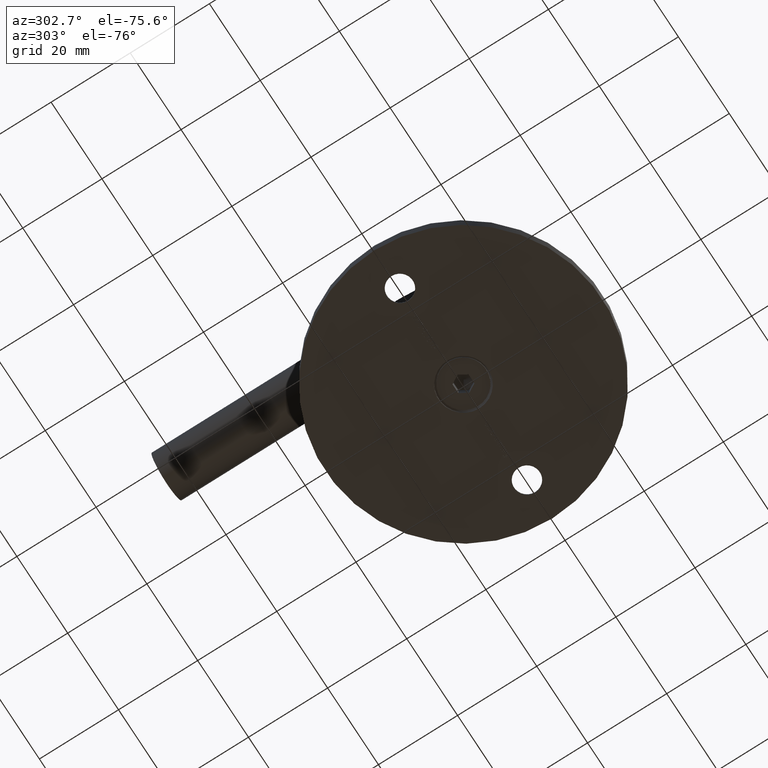
[diagram: clean part render]
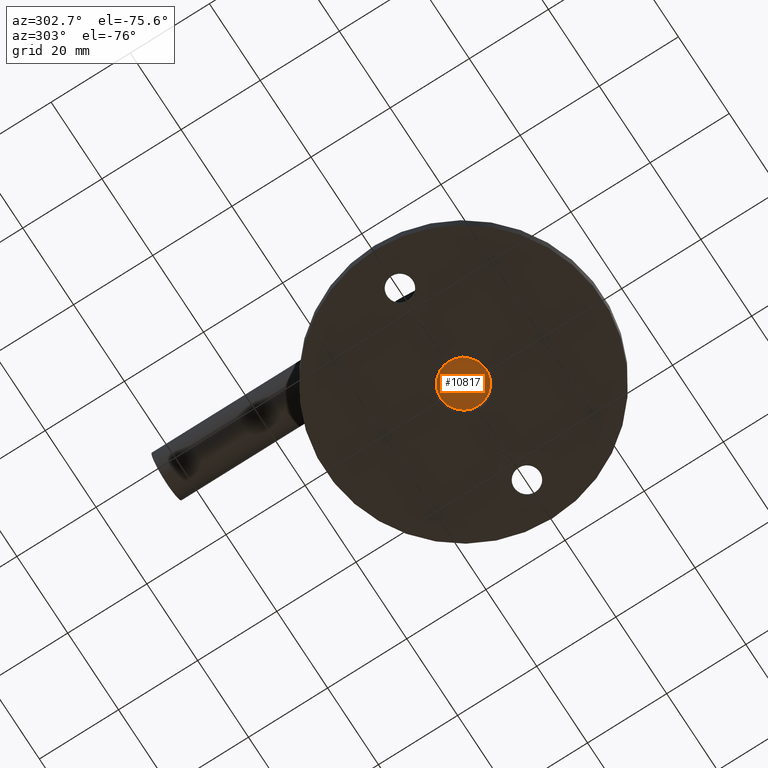
[diagram: same view with one face highlighted and labeled with its STEP entity id]
A machine part, auxiliary view. The second image highlights one B-rep face of the part: STEP entity #10817.
In plain terms, the highlighted planar face has unit normal (-0, 0, -1).
Its self-contained STEP definition (entity closure, byte-faithful):
#138 = ORIENTED_EDGE ( 'NONE', *, *, #9535, .T. ) ;
#214 = FACE_BOUND ( 'NONE', #10493, .T. ) ;
#323 = ORIENTED_EDGE ( 'NONE', *, *, #1240, .T. ) ;
#454 = VECTOR ( 'NONE', #9662, 1000.000000000000000 ) ;
#849 = VECTOR ( 'NONE', #8512, 1000.000000000000114 ) ;
#1240 = EDGE_CURVE ( 'NONE', #8772, #3171, #7513, .T. ) ;
#2100 = VERTEX_POINT ( 'NONE', #12720 ) ;
#2253 = DIRECTION ( 'NONE',  ( 0.000000000000000000, 1.000000000000000000, 0.000000000000000000 ) ) ;
#2633 = CARTESIAN_POINT ( 'NONE',  ( 0.000000000000000000, 7.084581733067438024E-16, -5.785000000000000142 ) ) ;
#2962 = CARTESIAN_POINT ( 'NONE',  ( 0.000000000000000000, 1.160474041071148932, -2.009999999999999787 ) ) ;
#3171 = VERTEX_POINT ( 'NONE', #9110 ) ;
#3634 = ORIENTED_EDGE ( 'NONE', *, *, #8213, .T. ) ;
#4236 = LINE ( 'NONE', #16741, #454 ) ;
#4256 = CARTESIAN_POINT ( 'NONE',  ( 0.000000000000000000, 0.000000000000000000, 0.000000000000000000 ) ) ;
#5115 = CARTESIAN_POINT ( 'NONE',  ( 0.000000000000000000, 1.160474041071148710, 2.009999999999999787 ) ) ;
#5296 = EDGE_CURVE ( 'NONE', #7621, #8772, #4236, .T. ) ;
#5564 = CARTESIAN_POINT ( 'NONE',  ( 0.000000000000000000, 1.160474041071148932, -2.009999999999999787 ) ) ;
#6294 = EDGE_LOOP ( 'NONE', ( #14949, #8555 ) ) ;
#6339 = CARTESIAN_POINT ( 'NONE',  ( 0.000000000000000000, -1.160474041071145601, -2.010000000000000231 ) ) ;
#7416 = CARTESIAN_POINT ( 'NONE',  ( 0.000000000000000000, 1.160474041071148710, 2.009999999999999787 ) ) ;
#7417 = ORIENTED_EDGE ( 'NONE', *, *, #13133, .T. ) ;
#7513 = LINE ( 'NONE', #7416, #12866 ) ;
#7621 = VERTEX_POINT ( 'NONE', #13964 ) ;
#8213 = EDGE_CURVE ( 'NONE', #3171, #2100, #16143, .T. ) ;
#8318 = CARTESIAN_POINT ( 'NONE',  ( 0.000000000000000000, 0.000000000000000000, 5.785000000000000142 ) ) ;
#8355 = EDGE_CURVE ( 'NONE', #2100, #10495, #17453, .T. ) ;
#8512 = DIRECTION ( 'NONE',  ( 0.000000000000000000, 0.4999999999999993339, -0.8660254037844389297 ) ) ;
#8555 = ORIENTED_EDGE ( 'NONE', *, *, #15259, .T. ) ;
#8772 = VERTEX_POINT ( 'NONE', #5115 ) ;
#9110 = CARTESIAN_POINT ( 'NONE',  ( 0.000000000000000000, -1.160474041071146489, 2.009999999999999787 ) ) ;
#9385 = DIRECTION ( 'NONE',  ( 0.000000000000000000, -0.4999999999999995004, -0.8660254037844389297 ) ) ;
#9465 = DIRECTION ( 'NONE',  ( -1.000000000000000000, 0.000000000000000000, -0.000000000000000000 ) ) ;
#9471 = LINE ( 'NONE', #6339, #10802 ) ;
#9535 = EDGE_CURVE ( 'NONE', #14131, #7621, #10882, .T. ) ;
#9662 = DIRECTION ( 'NONE',  ( 0.000000000000000000, -0.4999999999999999445, 0.8660254037844387076 ) ) ;
#9830 = CARTESIAN_POINT ( 'NONE',  ( 0.000000000000000000, -2.320948082142292535, 0.000000000000000000 ) ) ;
#9962 = CARTESIAN_POINT ( 'NONE',  ( 0.000000000000000000, 0.000000000000000000, 0.000000000000000000 ) ) ;
#10459 = AXIS2_PLACEMENT_3D ( 'NONE', #16608, #9465, #12331 ) ;
#10493 = EDGE_LOOP ( 'NONE', ( #3634, #17652, #7417, #138, #16589, #323 ) ) ;
#10495 = VERTEX_POINT ( 'NONE', #11033 ) ;
#10534 = FACE_OUTER_BOUND ( 'NONE', #6294, .T. ) ;
#10802 = VECTOR ( 'NONE', #2253, 1000.000000000000000 ) ;
#10817 = ADVANCED_FACE ( 'NONE', ( #10534, #214 ), #11134, .T. ) ;
#10882 = LINE ( 'NONE', #2962, #17099 ) ;
#11033 = CARTESIAN_POINT ( 'NONE',  ( 0.000000000000000000, -1.160474041071145601, -2.010000000000000231 ) ) ;
#11070 = DIRECTION ( 'NONE',  ( -1.000000000000000000, 0.000000000000000000, -0.000000000000000000 ) ) ;
#11134 = PLANE ( 'NONE',  #12018 ) ;
#11214 = VERTEX_POINT ( 'NONE', #2633 ) ;
#11272 = VECTOR ( 'NONE', #9385, 1000.000000000000000 ) ;
#11811 = DIRECTION ( 'NONE',  ( 0.000000000000000000, 0.4999999999999996114, 0.8660254037844388186 ) ) ;
#11978 = EDGE_CURVE ( 'NONE', #17351, #11214, #17041, .T. ) ;
#12018 = AXIS2_PLACEMENT_3D ( 'NONE', #9962, #13999, #16964 ) ;
#12331 = DIRECTION ( 'NONE',  ( 0.000000000000000000, 0.000000000000000000, 1.000000000000000000 ) ) ;
#12720 = CARTESIAN_POINT ( 'NONE',  ( 0.000000000000000000, -2.320948082142291202, 8.673617379884035472E-16 ) ) ;
#12866 = VECTOR ( 'NONE', #17232, 1000.000000000000000 ) ;
#13133 = EDGE_CURVE ( 'NONE', #10495, #14131, #9471, .T. ) ;
#13738 = AXIS2_PLACEMENT_3D ( 'NONE', #4256, #11070, #13998 ) ;
#13964 = CARTESIAN_POINT ( 'NONE',  ( 0.000000000000000000, 2.320948082142294311, 6.505213034913026604E-16 ) ) ;
#13998 = DIRECTION ( 'NONE',  ( 0.000000000000000000, 0.000000000000000000, 1.000000000000000000 ) ) ;
#13999 = DIRECTION ( 'NONE',  ( -1.000000000000000000, 0.000000000000000000, 0.000000000000000000 ) ) ;
#14131 = VERTEX_POINT ( 'NONE', #5564 ) ;
#14136 = CIRCLE ( 'NONE', #13738, 5.785000000000000142 ) ;
#14949 = ORIENTED_EDGE ( 'NONE', *, *, #11978, .T. ) ;
#15259 = EDGE_CURVE ( 'NONE', #11214, #17351, #14136, .T. ) ;
#16143 = LINE ( 'NONE', #16409, #11272 ) ;
#16409 = CARTESIAN_POINT ( 'NONE',  ( 0.000000000000000000, -1.160474041071146489, 2.009999999999999787 ) ) ;
#16589 = ORIENTED_EDGE ( 'NONE', *, *, #5296, .T. ) ;
#16608 = CARTESIAN_POINT ( 'NONE',  ( 0.000000000000000000, 0.000000000000000000, 0.000000000000000000 ) ) ;
#16741 = CARTESIAN_POINT ( 'NONE',  ( 0.000000000000000000, 2.320948082142294311, 6.505213034913026604E-16 ) ) ;
#16964 = DIRECTION ( 'NONE',  ( 0.000000000000000000, 0.000000000000000000, 1.000000000000000000 ) ) ;
#17041 = CIRCLE ( 'NONE', #10459, 5.785000000000000142 ) ;
#17099 = VECTOR ( 'NONE', #11811, 1000.000000000000000 ) ;
#17232 = DIRECTION ( 'NONE',  ( 0.000000000000000000, -1.000000000000000000, 0.000000000000000000 ) ) ;
#17351 = VERTEX_POINT ( 'NONE', #8318 ) ;
#17453 = LINE ( 'NONE', #9830, #849 ) ;
#17652 = ORIENTED_EDGE ( 'NONE', *, *, #8355, .T. ) ;